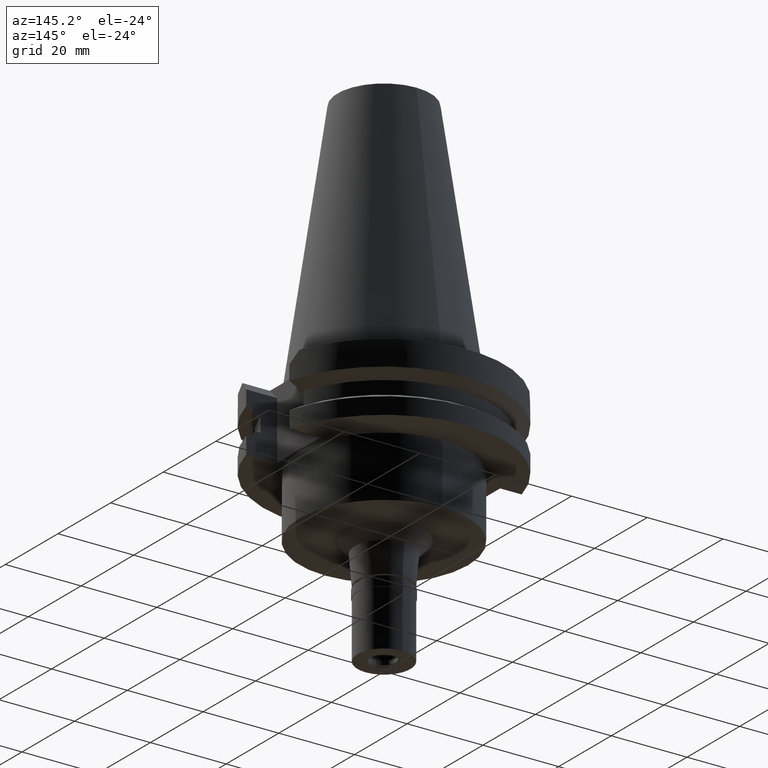
[diagram: clean part render]
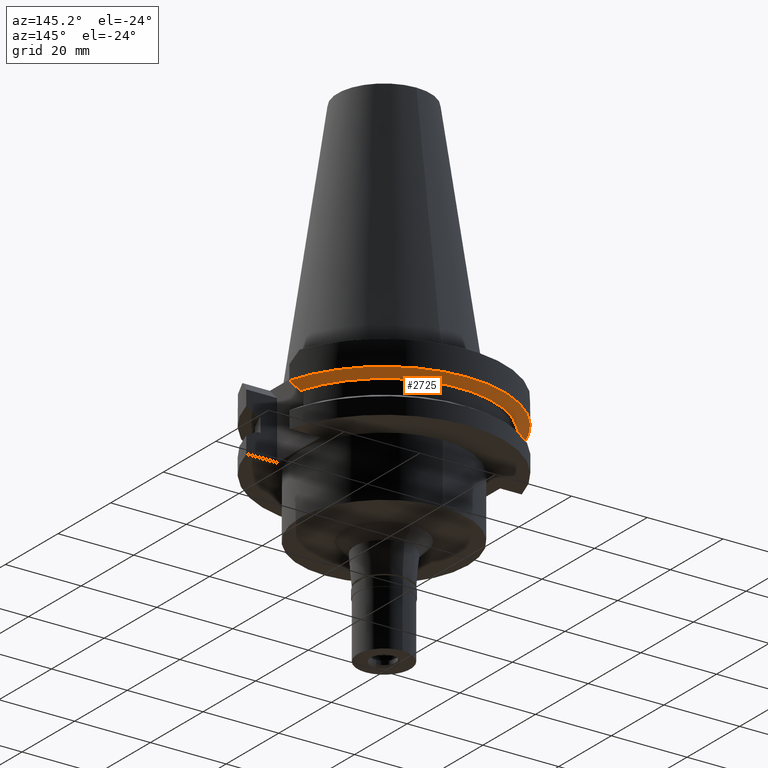
[diagram: same view with one face highlighted and labeled with its STEP entity id]
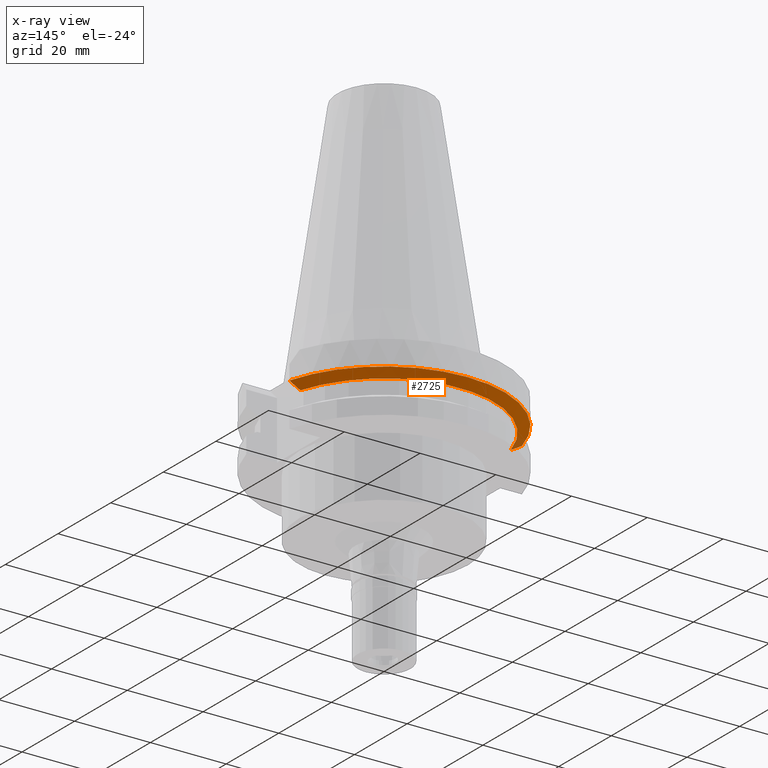
[diagram: x-ray of the same camera — body ghosted, the highlighted face saturated]
A machine part, auxiliary view. The second image highlights one B-rep face of the part: STEP entity #2725.
The next image is the same camera in x-ray: the body ghosted, the highlighted face saturated — about 2% of this face is hidden behind the body in this view.
In plain terms, the highlighted conical surface has half-angle 60 deg.
Its self-contained STEP definition (entity closure, byte-faithful):
#136 = B_SPLINE_CURVE_WITH_KNOTS ( 'NONE', 3,
 ( #567, #739, #1993, #2531 ),
 .UNSPECIFIED., .F., .F.,
 ( 4, 4 ),
 ( 0.0000000000000000000, 1.000000000000000000 ),
 .UNSPECIFIED. ) ;
#240 = ORIENTED_EDGE ( 'NONE', *, *, #1669, .T. ) ;
#297 = EDGE_CURVE ( 'NONE', #1502, #1078, #3002, .T. ) ;
#376 = AXIS2_PLACEMENT_3D ( 'NONE', #2082, #3076, #860 ) ;
#444 = CARTESIAN_POINT ( 'NONE',  ( 27.78617709881999787, 8.189999356777999395, -9.207500000000999663 ) ) ;
#566 = ORIENTED_EDGE ( 'NONE', *, *, #297, .F. ) ;
#567 = CARTESIAN_POINT ( 'NONE',  ( -27.78616457647999738, 8.190000188397998926, -9.207500000000999663 ) ) ;
#739 = CARTESIAN_POINT ( 'NONE',  ( -28.70625664611540984, 8.190000377223991990, -8.697959226007149880 ) ) ;
#860 = DIRECTION ( 'NONE',  ( 0.9661575315241073270, 0.2579527559055020958, 0.0000000000000000000 ) ) ;
#872 = ORIENTED_EDGE ( 'NONE', *, *, #2355, .T. ) ;
#1078 = VERTEX_POINT ( 'NONE', #1295 ) ;
#1124 = EDGE_CURVE ( 'NONE', #3010, #2126, #1306, .T. ) ;
#1290 = CARTESIAN_POINT ( 'NONE',  ( 30.67550165992999567, 8.189999872519001300, -7.601334370145000463 ) ) ;
#1295 = CARTESIAN_POINT ( 'NONE',  ( -30.67550146353999807, 8.190000608080000077, -7.601327796767000322 ) ) ;
#1306 = CIRCLE ( 'NONE', #3106, 28.96803755052999918 ) ;
#1404 = CARTESIAN_POINT ( 'NONE',  ( 0.0000000000000000000, 1.121722380078999823E-14, -8.404416615464000984 ) ) ;
#1502 = VERTEX_POINT ( 'NONE', #1290 ) ;
#1669 = EDGE_CURVE ( 'NONE', #2126, #1078, #136, .T. ) ;
#1740 = CARTESIAN_POINT ( 'NONE',  ( 0.0000000000000000000, 1.121722380078999823E-14, -9.207500000002999840 ) ) ;
#1821 = DIRECTION ( 'NONE',  ( 0.0000000000000000000, 1.000000000000000000, 0.0000000000000000000 ) ) ;
#1825 = CARTESIAN_POINT ( 'NONE',  ( 28.70626002153279543, 8.189998712135889036, -8.697957606022015398 ) ) ;
#1834 = DIRECTION ( 'NONE',  ( 0.0000000000000000000, 1.000000000000000000, 0.0000000000000000000 ) ) ;
#1840 = CARTESIAN_POINT ( 'NONE',  ( 29.66936063855689198, 8.189999745133981435, -8.162570092607735361 ) ) ;
#1988 = CARTESIAN_POINT ( 'NONE',  ( -27.78616457647999738, 8.190000188397998926, -9.207500000000999663 ) ) ;
#1993 = CARTESIAN_POINT ( 'NONE',  ( -29.66936136452787665, 8.190001215721581573, -8.162569465046555450 ) ) ;
#2082 = CARTESIAN_POINT ( 'NONE',  ( 0.0000000000000000000, 1.121722380078999823E-14, -7.601333230925999551 ) ) ;
#2126 = VERTEX_POINT ( 'NONE', #1988 ) ;
#2234 = CONICAL_SURFACE ( 'NONE', #2645, 30.35901877526999826, 1.047197551196400456 ) ;
#2334 = CARTESIAN_POINT ( 'NONE',  ( 30.67550165992999567, 8.189999872519001300, -7.601334370145000463 ) ) ;
#2355 = EDGE_CURVE ( 'NONE', #1502, #3010, #3041, .T. ) ;
#2530 = EDGE_LOOP ( 'NONE', ( #872, #2670, #240, #566 ) ) ;
#2531 = CARTESIAN_POINT ( 'NONE',  ( -30.67550146353999807, 8.190000608080000077, -7.601327796767000322 ) ) ;
#2604 = DIRECTION ( 'NONE',  ( 0.0000000000000000000, 0.0000000000000000000, 1.000000000000000000 ) ) ;
#2616 = DIRECTION ( 'NONE',  ( 0.0000000000000000000, 0.0000000000000000000, 1.000000000000000000 ) ) ;
#2645 = AXIS2_PLACEMENT_3D ( 'NONE', #1404, #2604, #1821 ) ;
#2670 = ORIENTED_EDGE ( 'NONE', *, *, #1124, .T. ) ;
#2725 = ADVANCED_FACE ( 'NONE', ( #3087 ), #2234, .T. ) ;
#2835 = CARTESIAN_POINT ( 'NONE',  ( 27.78617709881999787, 8.189999356777999395, -9.207500000000999663 ) ) ;
#3002 = CIRCLE ( 'NONE', #376, 31.74999999999998579 ) ;
#3010 = VERTEX_POINT ( 'NONE', #444 ) ;
#3041 = B_SPLINE_CURVE_WITH_KNOTS ( 'NONE', 3,
 ( #2334, #1840, #1825, #2835 ),
 .UNSPECIFIED., .F., .F.,
 ( 4, 4 ),
 ( 0.0000000000000000000, 1.000000000000000000 ),
 .UNSPECIFIED. ) ;
#3076 = DIRECTION ( 'NONE',  ( 0.0000000000000000000, 0.0000000000000000000, 1.000000000000000000 ) ) ;
#3087 = FACE_OUTER_BOUND ( 'NONE', #2530, .T. ) ;
#3106 = AXIS2_PLACEMENT_3D ( 'NONE', #1740, #2616, #1834 ) ;